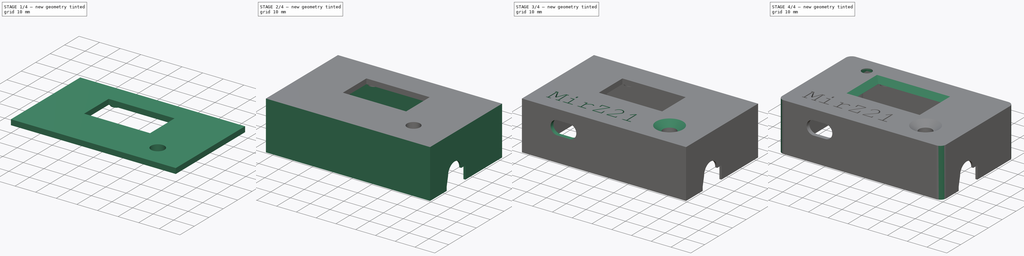
[diagram: build sequence overview — one tinted view per stage of 4, left to right]
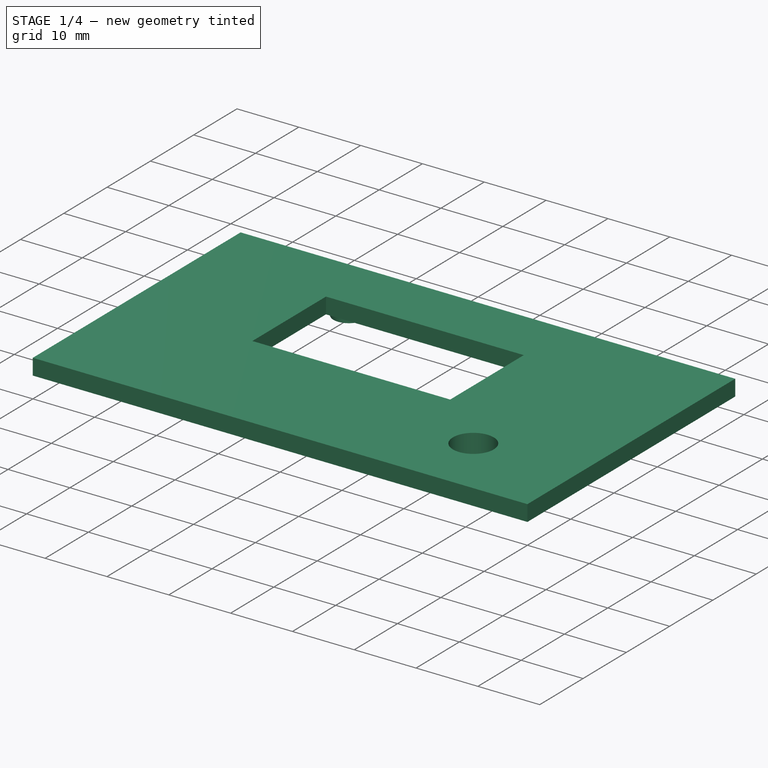
[diagram: stage 1 of 4 — iso view after this stage's code; geometry added in this stage tinted green]
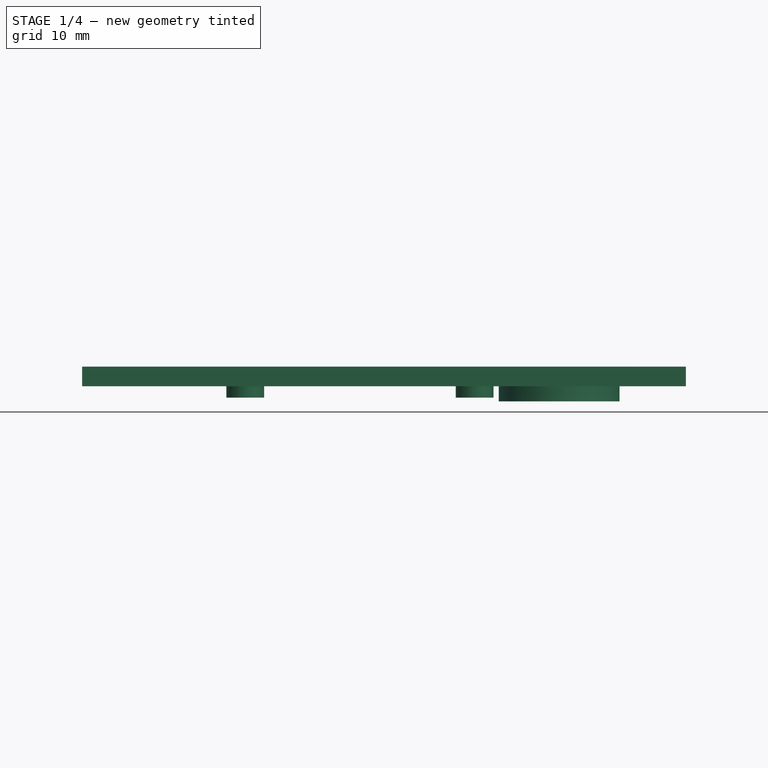
[diagram: stage 1 of 4 — front view after this stage's code; geometry added in this stage tinted green]
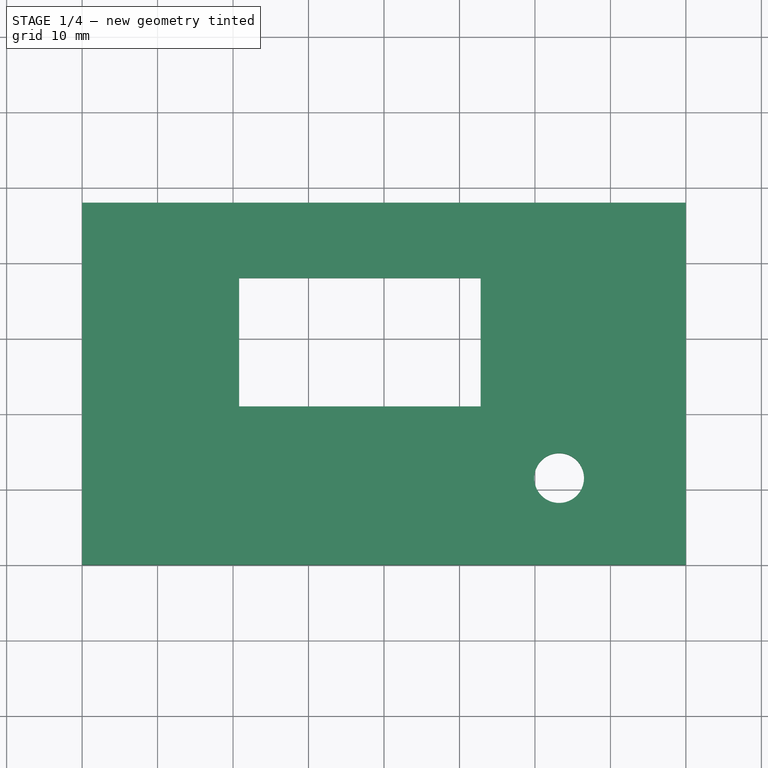
[diagram: stage 1 of 4 — top view after this stage's code; geometry added in this stage tinted green]
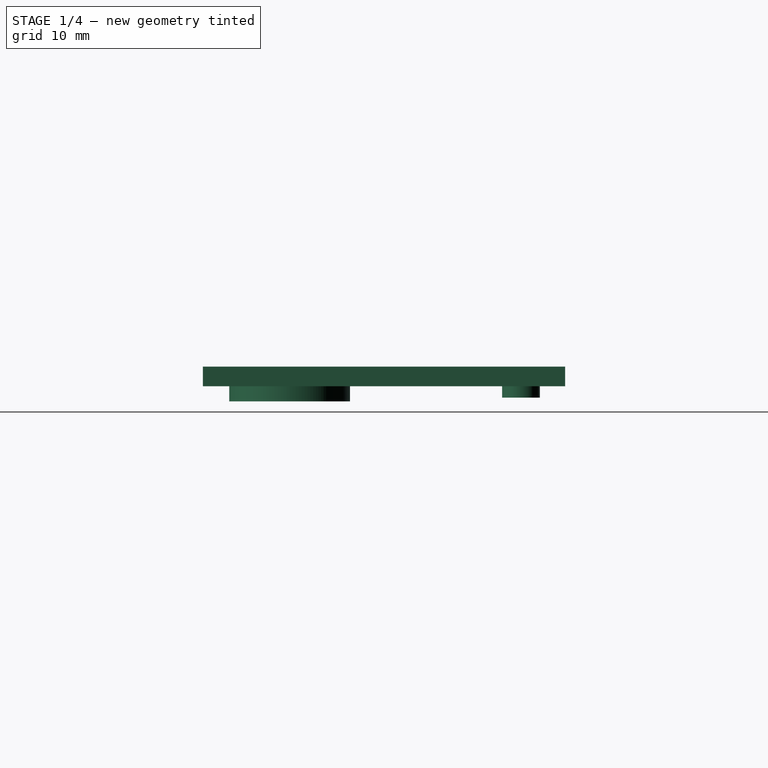
[diagram: stage 1 of 4 — right view after this stage's code; geometry added in this stage tinted green]
FCSTD DOCUMENT  (FreeCAD 0.20R29603 (Git))
Label: mir_top_small_IR
License: All rights reserved
LicenseURL: http://en.wikipedia.org/wiki/All_rights_reserved
objects: Sketcher::SketchObject×10, PartDesign::Pocket×6, PartDesign::Pad×5, PartDesign::Chamfer×2, PartDesign::Plane×1, Part::Part2DObjectPython×1, PartDesign::Fillet×1, PartDesign::Body×1
note: 41 computed .brp shape members not serialized (recipe doc carries the construction recipe); baked Part::Feature solids carry a one-line shape summary decoded from their .brp

FEATURE [Sketcher::SketchObject] Sketch  label="SK_Top"
  FullyConstrained = true
  MapMode = 5
  Support = -> [XY_Plane]
  sketch-geometry (14):
    g0: LineSegment StartX=0 StartY=0 StartZ=0 EndX=80 EndY=0 EndZ=0
    g1: LineSegment StartX=80 StartY=0 StartZ=0 EndX=80 EndY=48 EndZ=0
    g2: LineSegment StartX=80 StartY=48 StartZ=0 EndX=0 EndY=48 EndZ=0
    g3: LineSegment StartX=0 StartY=48 StartZ=0 EndX=0 EndY=0 EndZ=0
    g4: Circle CenterX=63.2 CenterY=11.5 CenterZ=0 NormalX=0 NormalY=0 NormalZ=1 AngleXU=0 Radius=3.3
    g5: Circle CenterX=52.01 CenterY=13.65 CenterZ=0 NormalX=0 NormalY=0 NormalZ=1 AngleXU=0 Radius=1.5
    g6: Circle CenterX=21.61 CenterY=13.65 CenterZ=0 NormalX=0 NormalY=0 NormalZ=1 AngleXU=0 Radius=1.5
    g7: Circle CenterX=52.01 CenterY=42.15 CenterZ=0 NormalX=0 NormalY=0 NormalZ=1 AngleXU=0 Radius=1.5
    g8: Circle CenterX=21.61 CenterY=42.15 CenterZ=0 NormalX=0 NormalY=0 NormalZ=1 AngleXU=0 Radius=1.5
    g9: LineSegment StartX=20.81 StartY=38 StartZ=0 EndX=52.81 EndY=38 EndZ=0
    g10: LineSegment StartX=52.81 StartY=38 StartZ=0 EndX=52.81 EndY=21 EndZ=0
    g11: LineSegment StartX=52.81 StartY=21 StartZ=0 EndX=20.81 EndY=21 EndZ=0
    g12: LineSegment StartX=20.81 StartY=21 StartZ=0 EndX=20.81 EndY=38 EndZ=0
    g13: Circle CenterX=33 CenterY=43 CenterZ=0 NormalX=0 NormalY=0 NormalZ=1 AngleXU=0 Radius=1
  constraints (41):
    c: Coincident(g0,g1)
    c: Coincident(g1,g2)
    c: Coincident(g2,g3)
    c: Coincident(g3,g0)
    c: Horizontal(g0)
    c: Horizontal(g2)
    c: Vertical(g1)
    c: Vertical(g3)
    c: Coincident(g0,g-1)
    c: DistanceY(g3,g3) = 48
    c: DistanceX(g2,g2) = 80
    c: Diameter(g4) = 6.6
    c: DistanceX(g6,g5) = 30.4
    c: DistanceY(g5,g7) = 28.5
    c: DistanceX(g8,g7) = 30.4
    c: Equal(g8,g7)
    c: Equal(g8,g5)
    c: Equal(g8,g6)
    c: Diameter(g8) = 3
    c: Coincident(g9,g10)
    c: Coincident(g10,g11)
    c: Coincident(g11,g12)
    c: Coincident(g12,g9)
    c: Horizontal(g9)
    c: Horizontal(g11)
    c: Vertical(g10)
    c: Vertical(g12)
    c: DistanceY(g12,g12) = 17
    c: DistanceX(g9,g9) = 32
    c: DistanceX(g8,g13) = 11.39
    c: Diameter(g13) = 2
    c: DistanceX(g13) = 33
    c: DistanceX(g13,g4) = 30.2
    c: DistanceX(g7,g9) = 0.8
    c: DistanceY(g4,g2) = 36.5
    c: DistanceY(g8,g2) = 5.85
    c: DistanceY(g9,g2) = 10
    c: DistanceY(g13,g2) = 5
    c: Horizontal(g8,g7)
    c: Horizontal(g5,g6)
    c: Vertical(g8,g6)
FEATURE [Sketcher::SketchObject] Sketch006  label="SK_Wände"
  FullyConstrained = true
  MapMode = 5
  Support = -> [XY_Plane]
  sketch-geometry (8):
    g0: LineSegment StartX=0 StartY=0 StartZ=0 EndX=80 EndY=0 EndZ=0
    g1: LineSegment StartX=80 StartY=48 StartZ=0 EndX=0 EndY=48 EndZ=0
    g2: LineSegment StartX=0 StartY=48 StartZ=0 EndX=0 EndY=0 EndZ=0
    g3: LineSegment StartX=-2 StartY=50 StartZ=0 EndX=81 EndY=50 EndZ=0
    g4: LineSegment StartX=81 StartY=-2 StartZ=0 EndX=-2 EndY=-2 EndZ=0
    g5: LineSegment StartX=-2 StartY=-2 StartZ=0 EndX=-2 EndY=50 EndZ=0
    g6: LineSegment StartX=80 StartY=48 StartZ=0 EndX=80 EndY=0 EndZ=0
    g7: LineSegment StartX=81 StartY=50 StartZ=0 EndX=81 EndY=-2 EndZ=0
  constraints (23):
    c: Coincident(g1,g2)
    c: Coincident(g2,g0)
    c: Horizontal(g0)
    c: Horizontal(g1)
    c: Vertical(g2)
    c: Coincident(g0,g-1)
    c: DistanceX(g1,g1) = 80
    c: DistanceY(g0,g1) = 48
    c: Coincident(g4,g5)
    c: Coincident(g5,g3)
    c: Horizontal(g3)
    c: Horizontal(g4)
    c: Vertical(g5)
    c: DistanceX(g3,g3) = 83
    c: DistanceY(g5,g5) = 52
    c: DistanceX(g4,g0) = 2
    c: DistanceY(g4,g0) = 2
    c: Equal(g3,g4)
    c: Equal(g1,g0)
    c: Coincident(g6,g1)
    c: Coincident(g6,g0)
    c: Coincident(g7,g3)
    c: Coincident(g7,g4)
FEATURE [PartDesign::Plane] DatumPlane  label="Ref_Wand_Kabel"
  AttachmentOffset = pos=(0,0,76) rot=(0,0,1;0rad)
  Length = 87.2474
  MapMode = 5
  Placement = pos=(76,-1.69e-14,1.69e-14) rot=(0.57735,0.57735,0.57735;2.0944rad)
  ResizeMode = 0
  Support = -> [YZ_Plane]
  Width = 62.2474
FEATURE [Sketcher::SketchObject] Sketch007  label="SK_Wand_Kabel"
  FullyConstrained = true
  MapMode = 5
  Placement = pos=(76,-1.69e-14,1.69e-14) rot=(0.57735,0.57735,0.57735;2.0944rad)
  Support = -> [DatumPlane]
  sketch-geometry (6):
    g0: LineSegment StartX=23.5 StartY=-22 StartZ=0 EndX=23.5 EndY=-15.5 EndZ=0
    g1: LineSegment StartX=23.5 StartY=-15.5 StartZ=0 EndX=20.5 EndY=-15.5 EndZ=0
    g2: ArcOfCircle CenterX=15.75 CenterY=-15.5 CenterZ=0 NormalX=0 NormalY=0 NormalZ=1 AngleXU=0 Radius=4.75 StartAngle=0 EndAngle=3.14159
    g3: LineSegment StartX=11 StartY=-15.5 StartZ=0 EndX=10 EndY=-20 EndZ=0
    g4: LineSegment StartX=10 StartY=-20 StartZ=0 EndX=10 EndY=-22 EndZ=0
    g5: LineSegment StartX=10 StartY=-22 StartZ=0 EndX=23.5 EndY=-22 EndZ=0
  constraints (18):
    c: Vertical(g0)
    c: Horizontal(g1)
    c: Perpendicular(g1,g2) = 4.71239
    c: Coincident(g3,g4)
    c: Vertical(g4)
    c: DistanceY(g0,g0) = 6.5
    c: DistanceX(g1,g1) = 3
    c: Diameter(g2) = 9.5
    c: DistanceY(g4,g4) = 2
    c: DistanceX(g4,g0) = 13.5
    c: Coincident(g1,g0)
    c: Coincident(g2,g3)
    c: Horizontal(g2,g1)
    c: Coincident(g5,g4)
    c: Coincident(g5,g0)
    c: Horizontal(g5)
    c: DistanceX(g-1,g4) = 10
    c: DistanceY(g4,g-1) = 22
FEATURE [Part::Part2DObjectPython] ShapeString  # Draft 2D object (typed FeaturePython)
  FontFile = <path>
  MakeFace = true
  Placement = pos=(5,5,0) rot=(0,0,1;0rad)
  Size = 4
  String = MirZ21
  Tracking = 0
FEATURE [Sketcher::SketchObject] Sketch008  label="SK_USB"
  FullyConstrained = true
  MapMode = 5
  Placement = pos=(0,0,0) rot=(1,0,0;1.5708rad)
  Support = -> [XZ_Plane]
  sketch-geometry (5):
    g0: GeomPoint X=19 Y=-6 Z=0
    g1: ArcOfCircle CenterX=16 CenterY=-6 CenterZ=0 NormalX=0 NormalY=0 NormalZ=1 AngleXU=0 Radius=3.5 StartAngle=1.5708 EndAngle=4.71239
    g2: ArcOfCircle CenterX=22 CenterY=-6 CenterZ=0 NormalX=0 NormalY=0 NormalZ=1 AngleXU=0 Radius=3.5 StartAngle=4.71239 EndAngle=7.85398
    g3: LineSegment StartX=16 StartY=-9.5 StartZ=0 EndX=22 EndY=-9.5 EndZ=0
    g4: LineSegment StartX=22 StartY=-2.5 StartZ=0 EndX=16 EndY=-2.5 EndZ=0
  constraints (11):
    c: Tangent(g1,g3) = -1.5708
    c: Tangent(g3,g2) = -1.5708
    c: Tangent(g2,g4) = -1.5708
    c: Tangent(g4,g1) = -1.5708
    c: Horizontal(g3)
    c: Diameter(g2) = 7
    c: DistanceY(g0,g-1) = 6
    c: DistanceX(g-1,g0) = 19
    c: Symmetric(g1,g2,g0)
    c: DistanceX(g1,g2) = 6
    c: Equal(g2,g1)
FEATURE [PartDesign::Pad] Pad  label="Top"
  Direction = (0,0,1)
  Length = 2.6
  Length2 = 10
  Profile = -> Sketch
  ReferenceAxis = -> Sketch [N_Axis]
  Refine = true
  Type = 0
FEATURE [Sketcher::SketchObject] Sketch001  label="SK_Vertiefung_Taster"
  ExternalGeometry = -> [Pad]
  FullyConstrained = true
  MapMode = 5
  Support = -> [XY_Plane]
  sketch-geometry (2):
    g0: Circle CenterX=63.2 CenterY=11.5 CenterZ=0 NormalX=0 NormalY=0 NormalZ=1 AngleXU=0 Radius=8
    g1: Circle CenterX=63.2 CenterY=11.5 CenterZ=0 NormalX=0 NormalY=0 NormalZ=1 AngleXU=0 Radius=3.5
  constraints (4):
    c: Coincident(g1,g0)
    c: Diameter(g1) = 7
    c: Diameter(g0) = 16
    c: Coincident(g0,g-3)
FEATURE [PartDesign::Pad] Pad001  label="Vertiefung_Taster"
  BaseFeature = -> Pad
  Direction = (0,0,1)
  Length = 2
  Length2 = 10
  Profile = -> Sketch001
  ReferenceAxis = -> Sketch001 [N_Axis]
  Refine = true
  Reversed = true
  Type = 0
FEATURE [Sketcher::SketchObject] Sketch002  label="SK_Abstand_OLED"
  ExternalGeometry = -> [Pad001]
  FullyConstrained = true
  MapMode = 5
  Support = -> [XY_Plane]
  sketch-geometry (4):
    g0: Circle CenterX=21.61 CenterY=42.15 CenterZ=0 NormalX=0 NormalY=0 NormalZ=1 AngleXU=0 Radius=2.5
    g1: Circle CenterX=52.01 CenterY=42.15 CenterZ=0 NormalX=0 NormalY=0 NormalZ=1 AngleXU=0 Radius=2.5
    g2: Circle CenterX=52.01 CenterY=13.65 CenterZ=0 NormalX=0 NormalY=0 NormalZ=1 AngleXU=0 Radius=2.5
    g3: Circle CenterX=21.61 CenterY=13.65 CenterZ=0 NormalX=0 NormalY=0 NormalZ=1 AngleXU=0 Radius=2.5
  constraints (8):
    c: Equal(g3,g2)
    c: Equal(g3,g1)
    c: Equal(g3,g0)
    c: Diameter(g3) = 5
    c: Coincident(g0,g-3)
    c: Coincident(g1,g-4)
    c: Coincident(g3,g-6)
    c: Coincident(g2,g-5)
FEATURE [PartDesign::Pad] Pad002  label="Abstand_OLED"
  BaseFeature = -> Pad001
  Direction = (0,0,1)
  Length = 2.6
  Length2 = 1.5
  Profile = -> Sketch002
  ReferenceAxis = -> Sketch002 [N_Axis]
  Refine = true
  Type = 4
FEATURE [Sketcher::SketchObject] Sketch003  label="SK_Schrauben_OLED"
  ExternalGeometry = -> [Pad002]
  FullyConstrained = true
  MapMode = 5
  Support = -> [XY_Plane]
  sketch-geometry (4):
    g0: Circle CenterX=21.61 CenterY=42.15 CenterZ=0 NormalX=0 NormalY=0 NormalZ=1 AngleXU=0 Radius=1.375
    g1: Circle CenterX=52.01 CenterY=42.15 CenterZ=0 NormalX=0 NormalY=0 NormalZ=1 AngleXU=0 Radius=1.375
    g2: Circle CenterX=52.01 CenterY=13.65 CenterZ=0 NormalX=0 NormalY=0 NormalZ=1 AngleXU=0 Radius=1.375
    g3: Circle CenterX=21.61 CenterY=13.65 CenterZ=0 NormalX=0 NormalY=0 NormalZ=1 AngleXU=0 Radius=1.375
  constraints (8):
    c: Equal(g3,g2)
    c: Equal(g3,g1)
    c: Equal(g3,g0)
    c: Diameter(g3) = 2.75
    c: Coincident(g0,g-3)
    c: Coincident(g1,g-4)
    c: Coincident(g3,g-5)
    c: Coincident(g2,g-6)
FEATURE [PartDesign::Pocket] Pocket  label="Schrauben_OLED"
  BaseFeature = -> Pad002
  Direction = (0,0,-1)
  Length = 1.5
  Length2 = 2.2
  Profile = -> Sketch003
  ReferenceAxis = -> Sketch003 [N_Axis]
  Refine = true
  Type = 4
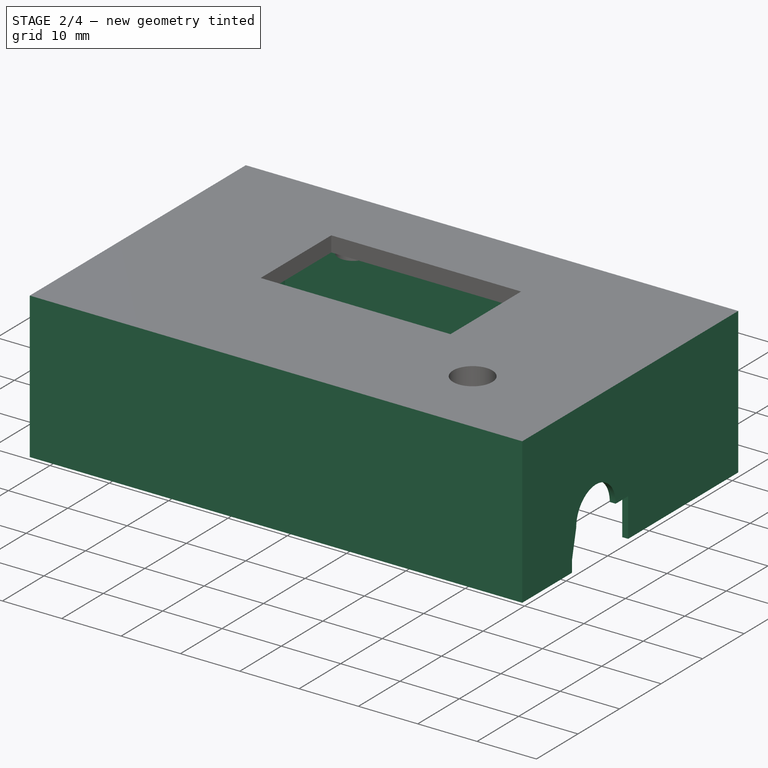
[diagram: stage 2 of 4 — iso view after this stage's code; geometry added in this stage tinted green]
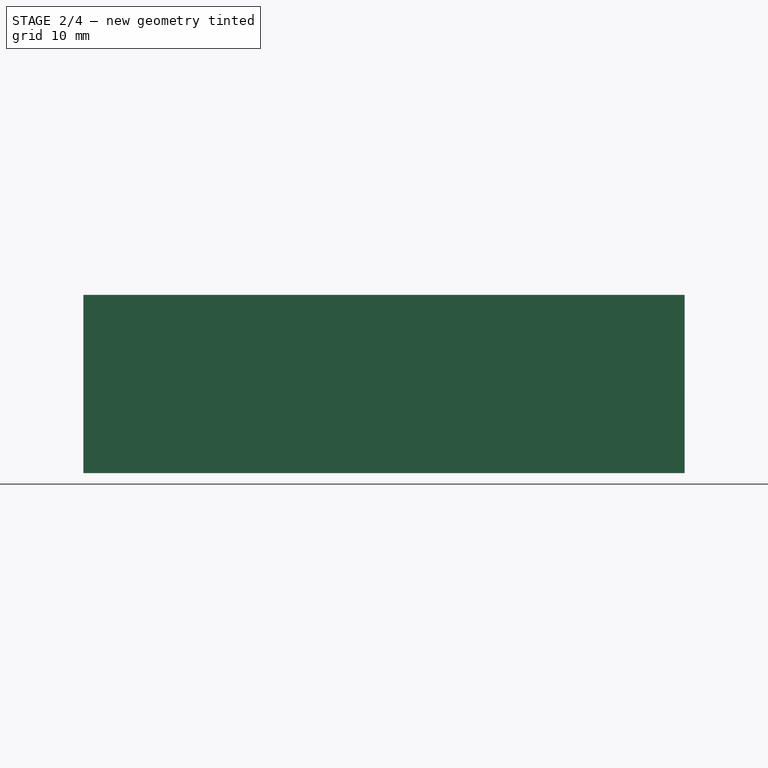
[diagram: stage 2 of 4 — front view after this stage's code; geometry added in this stage tinted green]
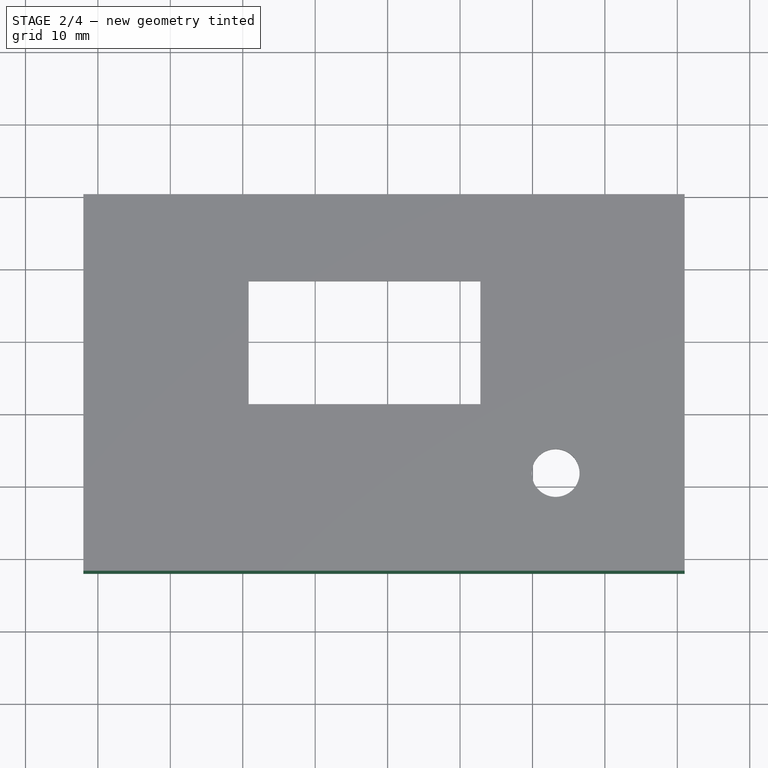
[diagram: stage 2 of 4 — top view after this stage's code; geometry added in this stage tinted green]
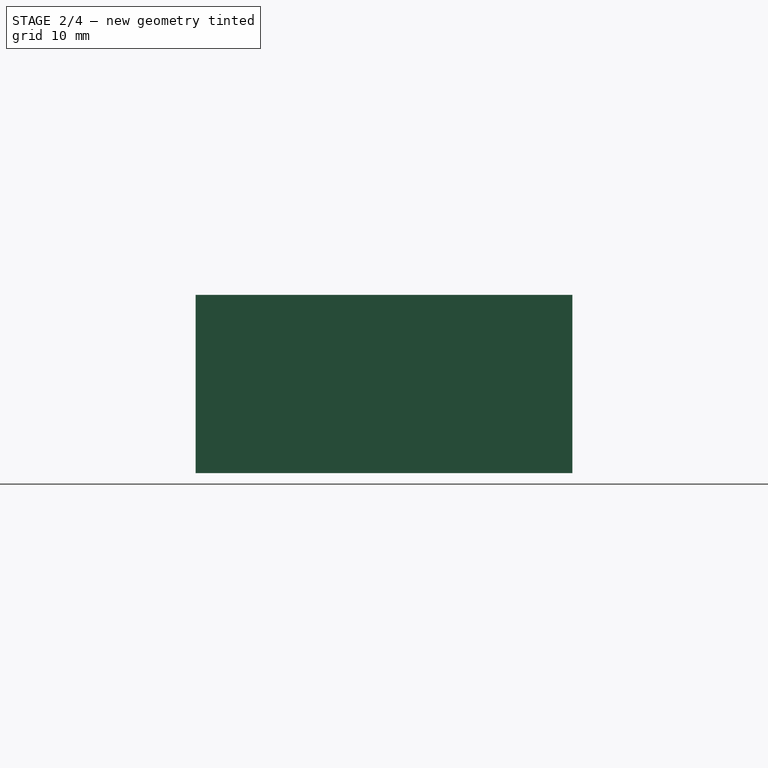
[diagram: stage 2 of 4 — right view after this stage's code; geometry added in this stage tinted green]
FEATURE [Sketcher::SketchObject] Sketch004  label="SK_Wand_Stützen"
  ExternalGeometry = -> [Pocket]
  FullyConstrained = false
  MapMode = 5
  Support = -> [XY_Plane]
  sketch-geometry (17):
    g0: Circle CenterX=2.5 CenterY=45.5 CenterZ=0 NormalX=0 NormalY=0 NormalZ=1 AngleXU=0 Radius=1.375
    g1: Circle CenterX=76.5 CenterY=45.5 CenterZ=0 NormalX=0 NormalY=0 NormalZ=1 AngleXU=0 Radius=1.375
    g2: Circle CenterX=76.5 CenterY=2.5 CenterZ=0 NormalX=0 NormalY=0 NormalZ=1 AngleXU=0 Radius=1.375
    g3: Circle CenterX=2.5 CenterY=2.5 CenterZ=0 NormalX=0 NormalY=0 NormalZ=1 AngleXU=0 Radius=1.375
    g4: LineSegment StartX=-2e-15 StartY=48 StartZ=0 EndX=-1.635e-13 EndY=48 EndZ=0
    g5: LineSegment StartX=0 StartY=0 StartZ=0 EndX=0 EndY=6 EndZ=0
    g6: ArcOfCircle CenterX=-4e-16 CenterY=-1e-15 CenterZ=0 NormalX=0 NormalY=0 NormalZ=1 AngleXU=0 Radius=6 StartAngle=2e-16 EndAngle=1.5708
    g7: LineSegment StartX=6 StartY=0 StartZ=0 EndX=0 EndY=0 EndZ=0
    g8: LineSegment StartX=-2e-15 StartY=48 StartZ=0 EndX=6 EndY=48 EndZ=0
    g9: ArcOfCircle CenterX=-9e-16 CenterY=48 CenterZ=0 NormalX=0 NormalY=0 NormalZ=1 AngleXU=0 Radius=6 StartAngle=4.71239 EndAngle=6.28319
    g10: LineSegment StartX=-2e-15 StartY=42 StartZ=0 EndX=-2e-15 EndY=48 EndZ=0
    g11: LineSegment StartX=80 StartY=48 StartZ=0 EndX=73 EndY=48 EndZ=0
    g12: ArcOfCircle CenterX=80 CenterY=48 CenterZ=0 NormalX=0 NormalY=0 NormalZ=1 AngleXU=0 Radius=7 StartAngle=3.14159 EndAngle=4.71239
    g13: LineSegment StartX=80 StartY=41 StartZ=0 EndX=80 EndY=48 EndZ=0
    g14: LineSegment StartX=80 StartY=0 StartZ=0 EndX=80 EndY=7 EndZ=0
    g15: ArcOfCircle CenterX=80 CenterY=5.4e-15 CenterZ=0 NormalX=0 NormalY=0 NormalZ=1 AngleXU=0 Radius=7 StartAngle=1.5708 EndAngle=3.14159
    g16: LineSegment StartX=73 StartY=0 StartZ=0 EndX=80 EndY=0 EndZ=0
  constraints (42):
    c: DistanceX(g-3,g0) = 2.5
    c: DistanceY(g0,g-3) = 2.5
    c: Diameter(g0) = 2.75
    c: DistanceY(g3,g0) = 43
    c: DistanceX(g0,g1) = 74
    c: Equal(g0,g3)
    c: Equal(g3,g2)
    c: Equal(g2,g1)
    c: DistanceX(g4,g8) = 6
    c: DistanceY(g9,g4) = 6
    c: Equal(g10,g5)
    c: Equal(g8,g7)
    c: DistanceX(g11,g11) = 7
    c: DistanceY(g13,g13) = 7
    c: Equal(g14,g13)
    c: Equal(g11,g16)
    c: DistanceX(g1,g11) = 3.5
    c: Vertical(g0,g3)
    c: Vertical(g1,g2)
    c: Horizontal(g1,g0)
    c: Horizontal(g3,g2)
    c: Radius(g9) = 6
    c: Equal(g9,g6)
    c: Radius(g12) = 7
    c: Equal(g12,g15)
    c: Vertical(g5)
    c: Vertical(g10)
    c: Horizontal(g7)
    c: Horizontal(g16)
    c: Horizontal(g8)
    c: Horizontal(g11)
    c: Vertical(g13)
    c: Vertical(g14)
    c: DistanceY(g5,g4) = 48
    c: DistanceX(g5,g14) = 80
    c: DistanceX(g8,g11) = 67
    c: DistanceY(g5,g9) = 36
    c: Equal(g16,g11)
    c: DistanceY(g14,g2) = 2.5
    c: DistanceX(g2,g14) = 3.5
    c: DistanceY(g1,g11) = 2.5
    c: DistanceY(g5,g3) = 2.5
FEATURE [PartDesign::Pad] Pad003  label="Wand_Stützen"
  BaseFeature = -> Pocket
  Direction = (0,0,1)
  Length = 20
  Length2 = 10
  Profile = -> Sketch004
  ReferenceAxis = -> Sketch004 [N_Axis]
  Refine = true
  Reversed = true
  Type = 0
FEATURE [PartDesign::Pad] Pad004  label="Wände"
  BaseFeature = -> Pad003
  Direction = (0,0,1)
  Length = 2.6
  Length2 = 22
  Profile = -> Sketch006
  ReferenceAxis = -> Sketch006 [N_Axis]
  Refine = true
  Type = 4
FEATURE [PartDesign::Pocket] Pocket001  label="Wand_Kabel"
  BaseFeature = -> Pad004
  Direction = (-1,1e-16,-1e-16)
  Length = 5
  Length2 = 5
  Profile = -> Sketch007
  ReferenceAxis = -> Sketch007 [N_Axis]
  Refine = true
  Reversed = true
  Type = 0
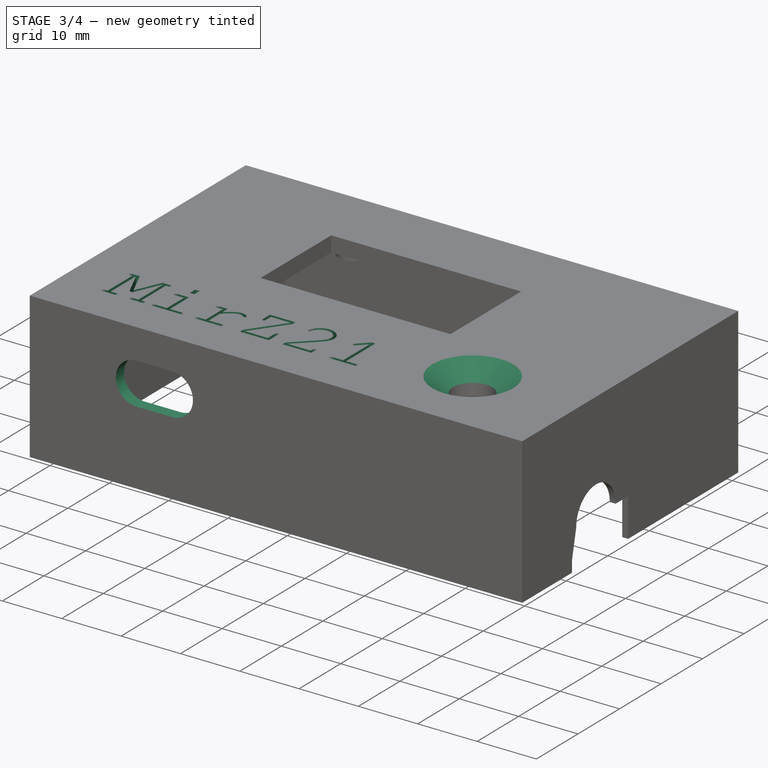
[diagram: stage 3 of 4 — iso view after this stage's code; geometry added in this stage tinted green]
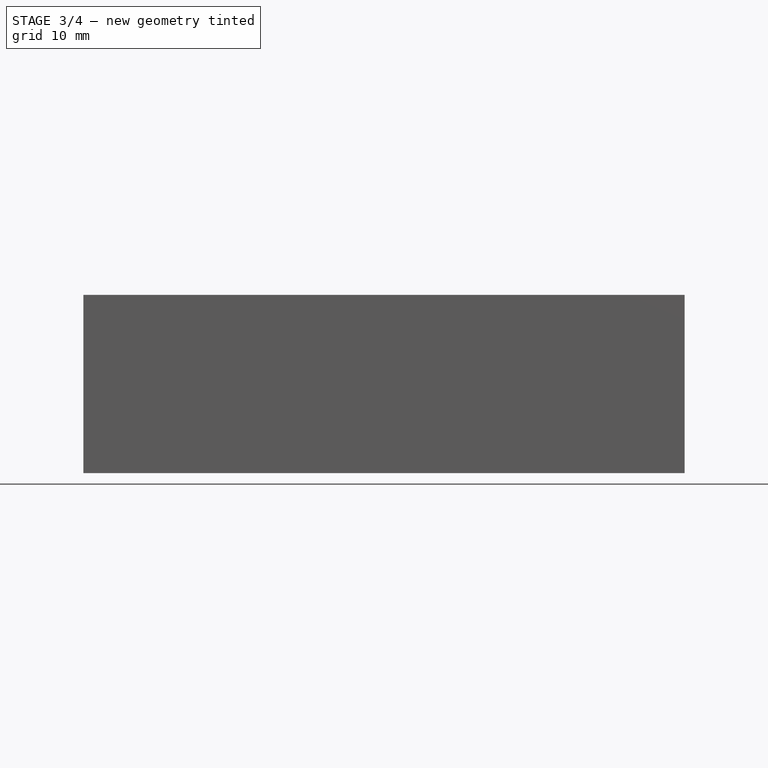
[diagram: stage 3 of 4 — front view after this stage's code; geometry added in this stage tinted green]
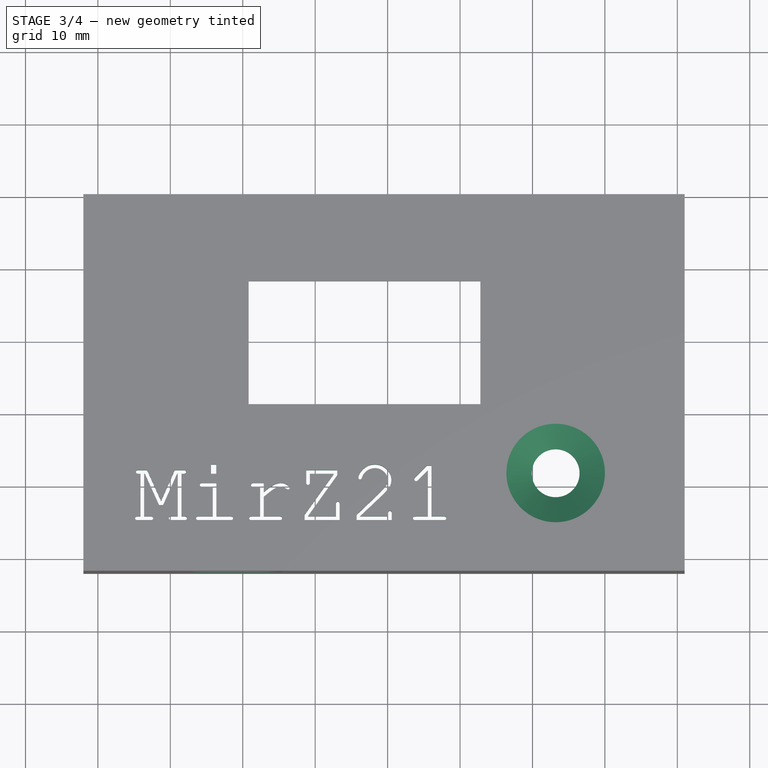
[diagram: stage 3 of 4 — top view after this stage's code; geometry added in this stage tinted green]
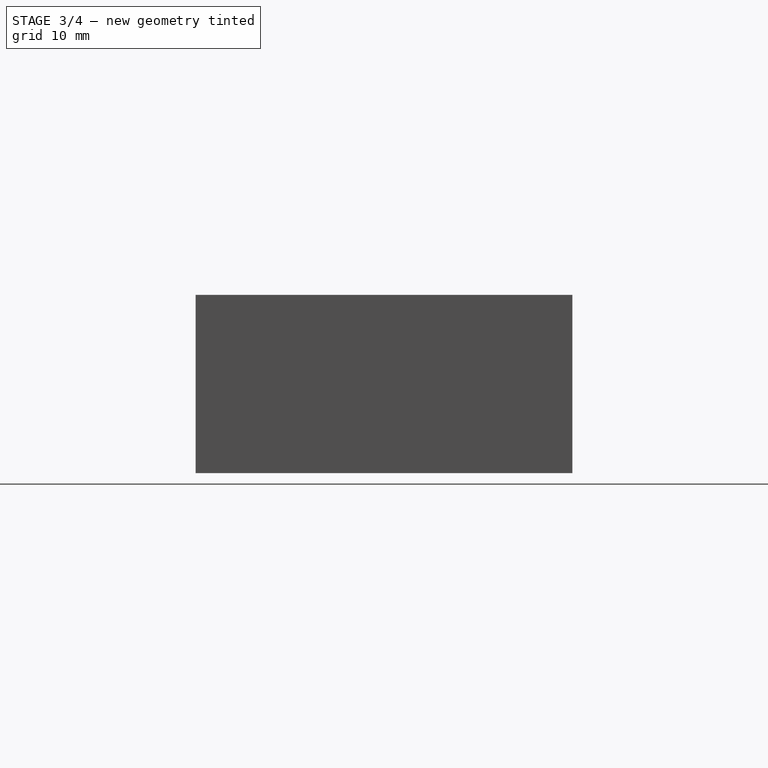
[diagram: stage 3 of 4 — right view after this stage's code; geometry added in this stage tinted green]
FEATURE [PartDesign::Pocket] Pocket002  label="MirZ21_Text"
  BaseFeature = -> Pocket001
  Direction = (0,0,-1)
  Length = 5
  Length2 = 5
  Profile = -> ShapeString
  ReferenceAxis = -> ShapeString [N_Axis]
  Refine = true
  Reversed = true
  Type = 0
FEATURE [PartDesign::Pocket] Pocket003  label="USB"
  BaseFeature = -> Pocket002
  Direction = (0,1,2e-16)
  Length = 5
  Length2 = 5
  Profile = -> Sketch008
  ReferenceAxis = -> Sketch008 [N_Axis]
  Refine = true
  Reversed = true
  Type = 0
FEATURE [PartDesign::Chamfer] Chamfer
  Angle = 36
  Base = -> Pocket003 [Edge159]
  BaseFeature = -> Pocket003
  ChamferType = 2
  FlipDirection = false
  Refine = true
  Size = 3.5
  Size2 = 1
  SupportTransform = false
  UseAllEdges = false
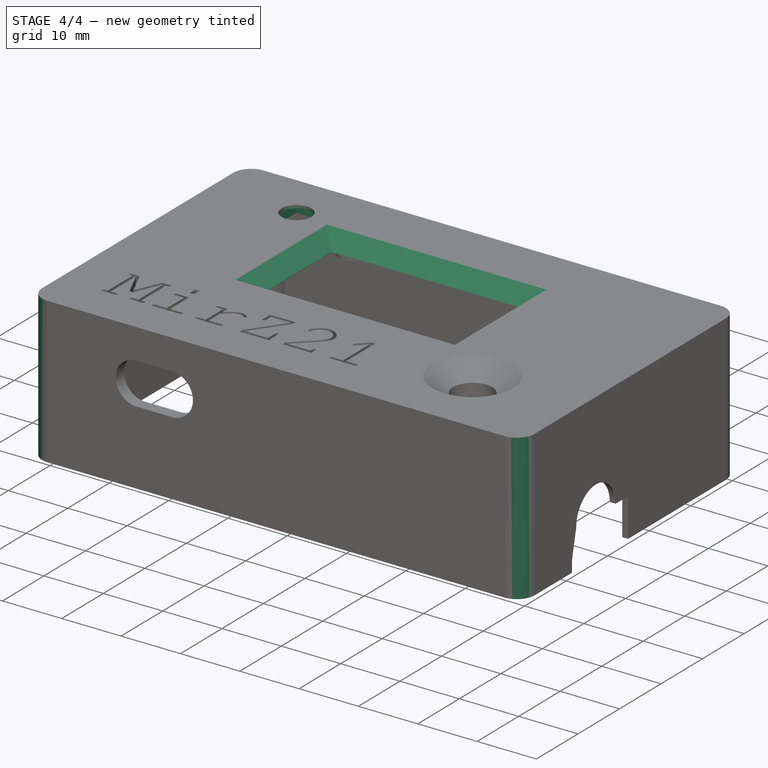
[diagram: stage 4 of 4 — iso view after this stage's code; geometry added in this stage tinted green]
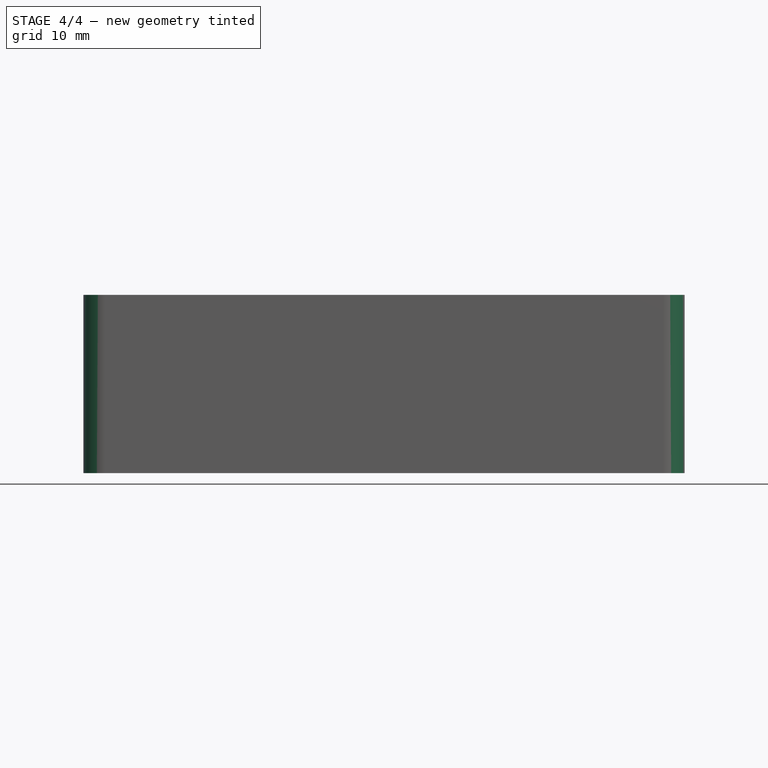
[diagram: stage 4 of 4 — front view after this stage's code; geometry added in this stage tinted green]
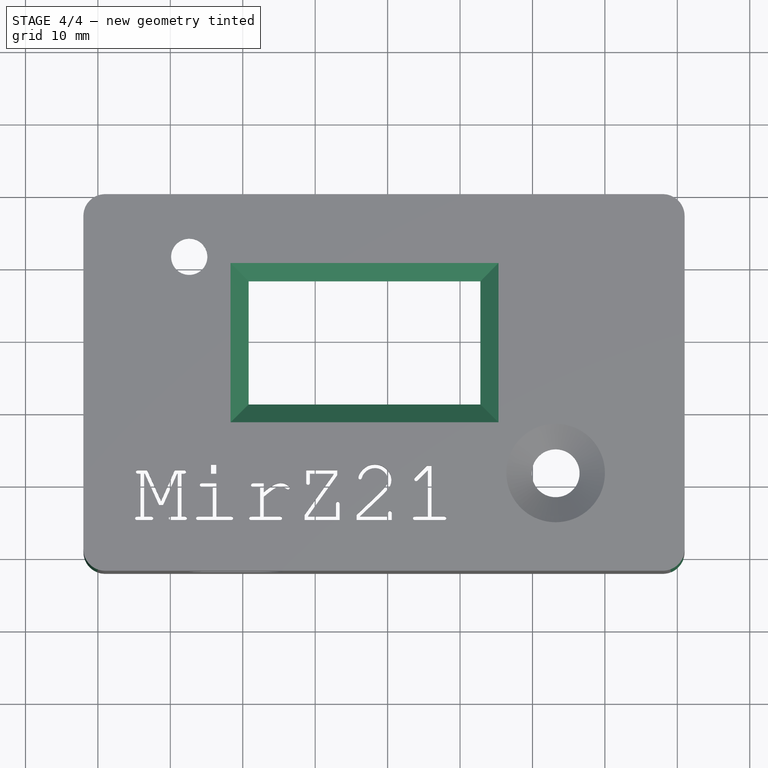
[diagram: stage 4 of 4 — top view after this stage's code; geometry added in this stage tinted green]
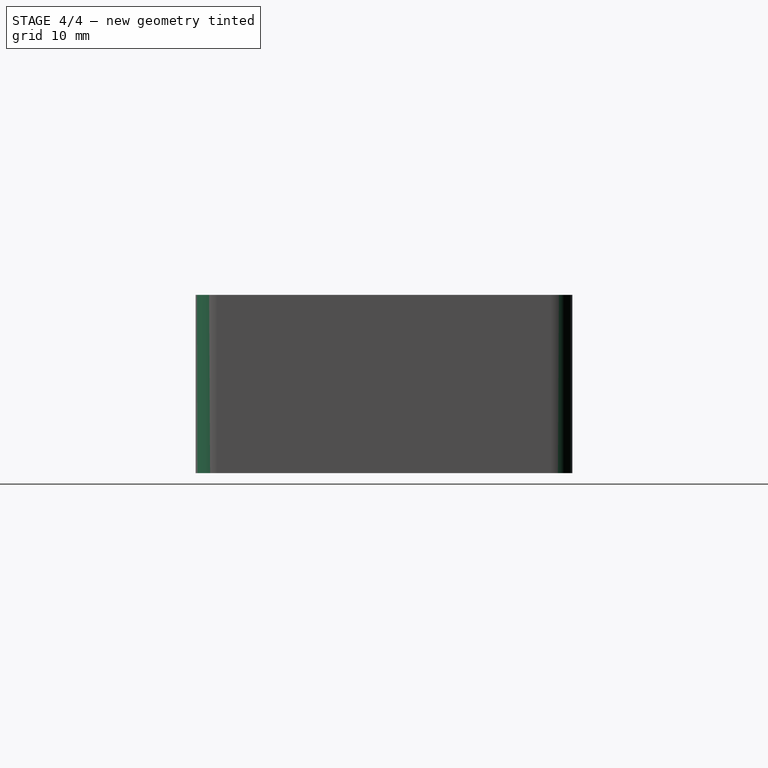
[diagram: stage 4 of 4 — right view after this stage's code; geometry added in this stage tinted green]
FEATURE [PartDesign::Chamfer] Chamfer001
  Angle = 45
  Base = -> Chamfer [Edge139,Edge141,Edge140,Edge142]
  BaseFeature = -> Chamfer
  ChamferType = 0
  FlipDirection = false
  Refine = true
  Size = 2.5
  Size2 = 1
  SupportTransform = false
  UseAllEdges = false
FEATURE [PartDesign::Fillet] Fillet
  Base = -> Chamfer001 [Edge154,Edge165,Edge156,Edge153]
  BaseFeature = -> Chamfer001
  Radius = 3
  Refine = true
  SupportTransform = false
  UseAllEdges = false
FEATURE [Sketcher::SketchObject] Sketch009  label="SK_IR_Loch"
  ExternalGeometry = -> [Sketch]
  FullyConstrained = true
  MapMode = 5
  Support = -> [XY_Plane]
  sketch-geometry (1):
    g0: Circle CenterX=12.61 CenterY=41.35 CenterZ=0 NormalX=0 NormalY=0 NormalZ=1 AngleXU=0 Radius=2.5
  constraints (3):
    c: Diameter(g0) = 5
    c: DistanceY(g0,g-3) = 0.8
    c: DistanceX(g0,g-3) = 9
FEATURE [PartDesign::Pocket] Pocket004  label="IR_Loch"
  BaseFeature = -> Fillet
  Direction = (0,0,-1)
  Length = 2.6
  Length2 = 5
  Profile = -> Sketch009
  ReferenceAxis = -> Sketch009 [N_Axis]
  Refine = true
  Reversed = true
  Type = 0
FEATURE [Sketcher::SketchObject] Sketch010  label="SK_IR_Sockel"
  ExternalGeometry = -> [Sketch009]
  FullyConstrained = true
  MapMode = 5
  Support = -> [XY_Plane]
  sketch-geometry (4):
    g0: LineSegment StartX=9.41 StartY=45.85 StartZ=0 EndX=15.81 EndY=45.85 EndZ=0
    g1: LineSegment StartX=15.81 StartY=45.85 StartZ=0 EndX=15.81 EndY=38.35 EndZ=0
    g2: LineSegment StartX=15.81 StartY=38.35 StartZ=0 EndX=9.41 EndY=38.35 EndZ=0
    g3: LineSegment StartX=9.41 StartY=38.35 StartZ=0 EndX=9.41 EndY=45.85 EndZ=0
  constraints (12):
    c: Coincident(g0,g1)
    c: Coincident(g1,g2)
    c: Coincident(g2,g3)
    c: Coincident(g3,g0)
    c: Horizontal(g0)
    c: Horizontal(g2)
    c: Vertical(g1)
    c: Vertical(g3)
    c: DistanceX(g2,g2) = 6.4
    c: DistanceY(g3,g3) = 7.5
    c: DistanceY(g1,g-3) = 3
    c: DistanceX(g2,g-3) = 3.2
FEATURE [PartDesign::Pocket] Pocket005  label="IR_Sockel"
  BaseFeature = -> Pocket004
  Direction = (0,0,-1)
  Length = 2
  Length2 = 5
  Profile = -> Sketch010
  ReferenceAxis = -> Sketch010 [N_Axis]
  Refine = true
  Reversed = true
  Type = 0
FEATURE [PartDesign::Body] Body  label="Top_mirZ21"
  Group = -> [Sketch,Sketch001,Sketch002,Sketch003,Sketch004,Sketch006,DatumPlane,Sketch007,ShapeString,Sketch008,Pad,Pad001,Pad002,Pocket,Pad003,Pad004,Pocket001,Pocket002,Pocket003,Chamfer,Chamfer001,Fillet,Sketch009,Pocket004,Sketch010,Pocket005]
  Origin = -> Origin
  Tip = -> Pocket005
note: 1 file-system path scrubbed to <path> (originals preserved in the JSON sidecar)
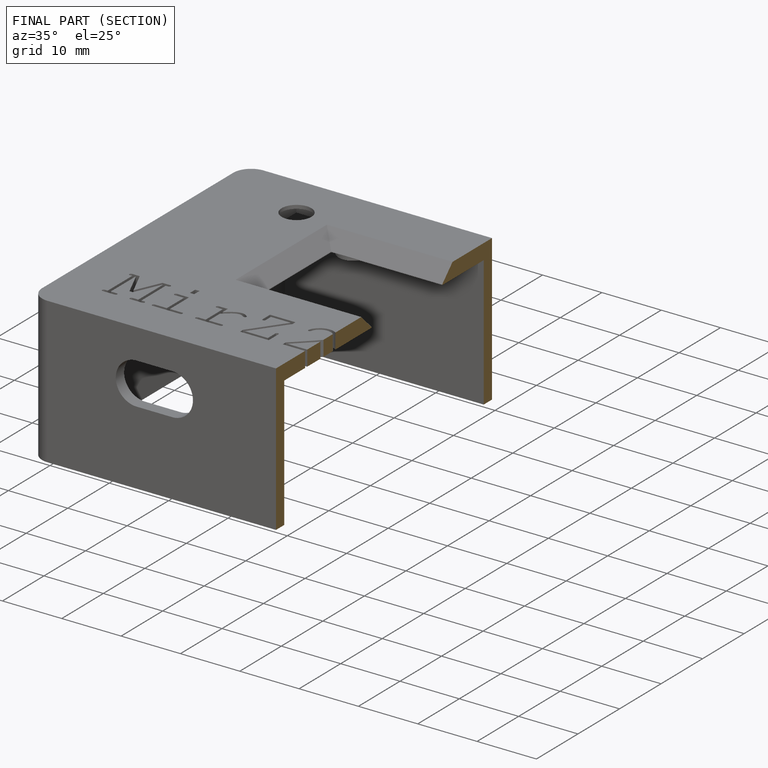
[diagram: finished part — half-section view (interior)]
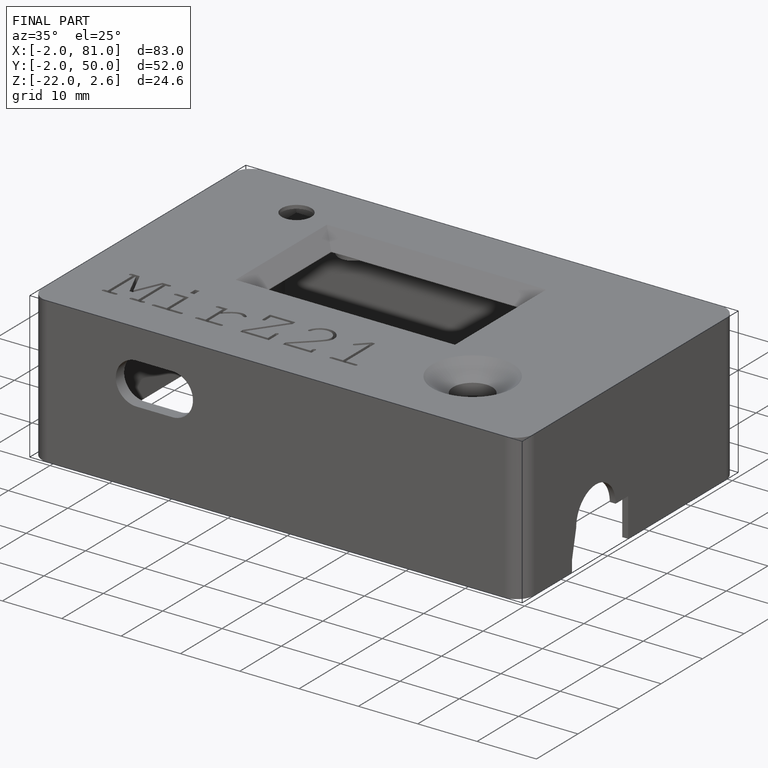
[diagram: finished part — iso view with bounding-box wireframe]
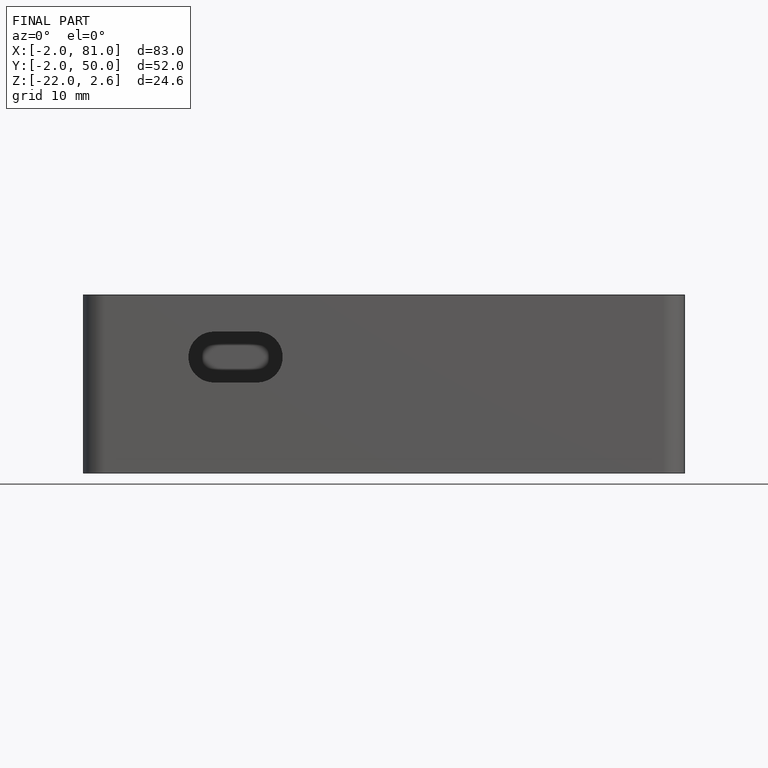
[diagram: finished part — front view with bounding-box wireframe]
